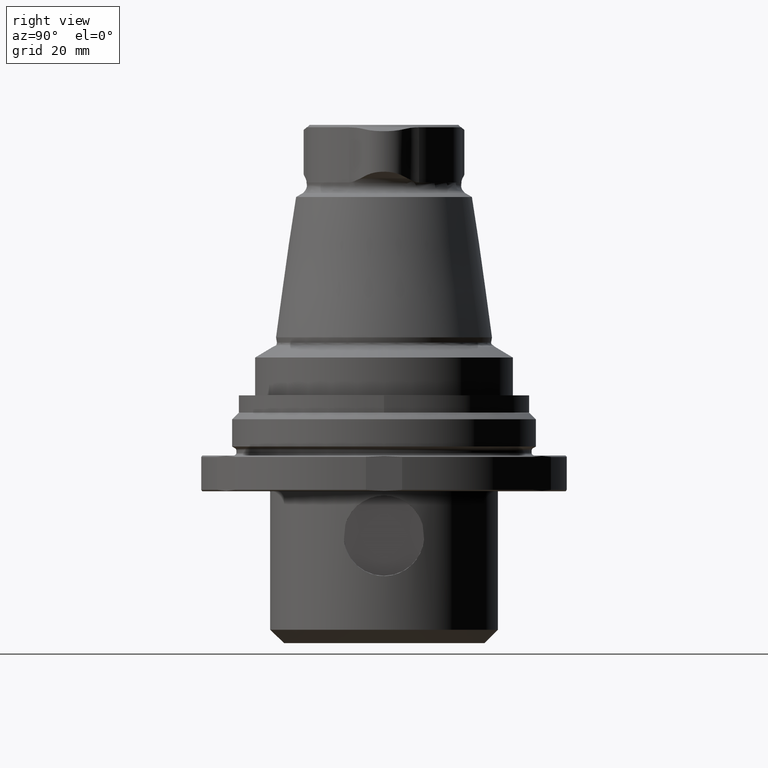
[diagram: clean part render]
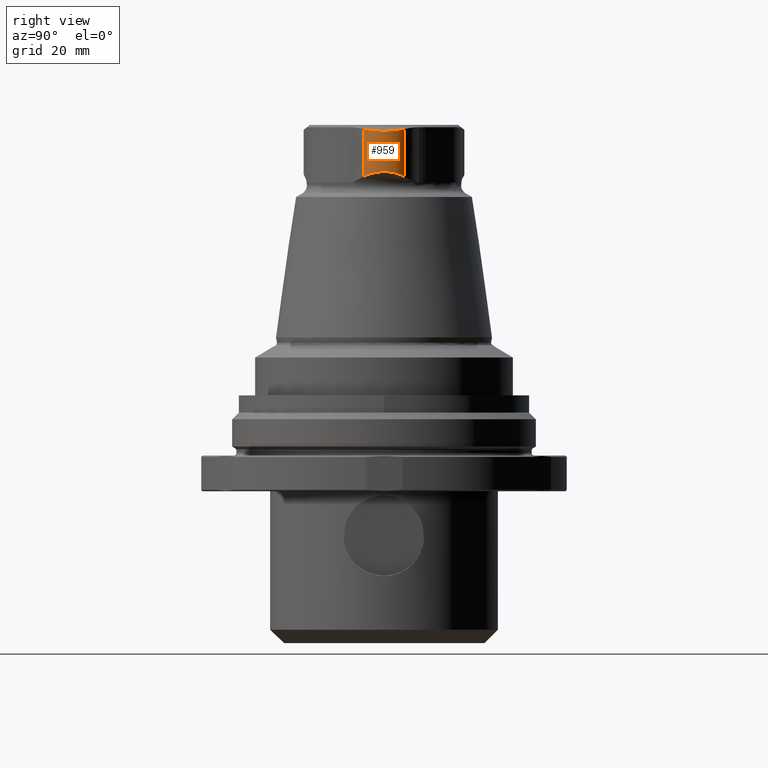
[diagram: same view with one face highlighted and labeled with its STEP entity id]
A machine part, right view. The second image highlights one B-rep face of the part: STEP entity #959.
In plain terms, the highlighted cylindrical surface (edge-blend (fillet) strip) has radius 6.35 mm, axis along (0, 0, 1).
Its self-contained STEP definition (entity closure, byte-faithful):
#133=LINE('',#1676,#163);
#134=LINE('',#1687,#164);
#163=VECTOR('',#1288,1000.);
#164=VECTOR('',#1289,1000.);
#310=ORIENTED_EDGE('',*,*,#512,.T.);
#311=ORIENTED_EDGE('',*,*,#513,.F.);
#312=ORIENTED_EDGE('',*,*,#514,.F.);
#313=ORIENTED_EDGE('',*,*,#515,.F.);
#512=EDGE_CURVE('',#627,#628,#133,.T.);
#513=EDGE_CURVE('',#629,#628,#684,.T.);
#514=EDGE_CURVE('',#630,#629,#134,.T.);
#515=EDGE_CURVE('',#627,#630,#685,.T.);
#627=VERTEX_POINT('',#1677);
#628=VERTEX_POINT('',#1678);
#629=VERTEX_POINT('',#1686);
#630=VERTEX_POINT('',#1688);
#684=B_SPLINE_CURVE_WITH_KNOTS('',3,(#1679,#1680,#1681,#1682,#1683,#1684,
#1685),.UNSPECIFIED.,.F.,.F.,(4,1,1,1,4),(2.84118447355397E-7,0.00249934494895464,
0.00499840577946193,0.00749746660996922,0.00999652744047651),
 .UNSPECIFIED.);
#685=B_SPLINE_CURVE_WITH_KNOTS('',3,(#1689,#1690,#1691,#1692,#1693,#1694,
#1695),.UNSPECIFIED.,.F.,.F.,(4,1,1,1,4),(3.04578262084422E-7,0.00256285858797735,
0.00512541259769261,0.00768796660740787,0.0102505206171231),
 .UNSPECIFIED.);
#756=EDGE_LOOP('',(#310,#311,#312,#313));
#851=FACE_BOUND('',#756,.T.);
#909=CYLINDRICAL_SURFACE('',#1073,6.35);
#959=ADVANCED_FACE('',(#851),#909,.T.);
#1073=AXIS2_PLACEMENT_3D('',#1675,#1286,#1287);
#1286=DIRECTION('',(0.,0.,1.));
#1287=DIRECTION('',(1.,-6.12303176911189E-17,0.));
#1288=DIRECTION('',(0.,0.,1.));
#1289=DIRECTION('',(0.,0.,1.));
#1675=CARTESIAN_POINT('',(13.45,-8.23547772984548E-16,-46.0210065492642));
#1676=CARTESIAN_POINT('',(17.9347568081611,4.49549289529549,-46.0210065492642));
#1677=CARTESIAN_POINT('',(17.9347568081611,4.49549289529549,61.4315662257756));
#1678=CARTESIAN_POINT('',(17.9347568081611,4.49549289529549,72.0597450497322));
#1679=CARTESIAN_POINT('',(17.9347568081611,-4.49549289529549,72.0597450497322));
#1680=CARTESIAN_POINT('',(18.5225614419484,-3.90909205012795,71.9041148537236));
#1681=CARTESIAN_POINT('',(19.4610857320775,-2.51303377295624,71.6659090895393));
#1682=CARTESIAN_POINT('',(19.9685709394265,-0.00183002506946202,71.5414607556683));
#1683=CARTESIAN_POINT('',(19.4646276304976,2.50554054900793,71.6650186576712));
#1684=CARTESIAN_POINT('',(18.5226164935731,3.9090371299769,71.9041002779706));
#1685=CARTESIAN_POINT('',(17.9347568081611,4.49549289529549,72.0597450497322));
#1686=CARTESIAN_POINT('',(17.9347568081611,-4.4954928952955,72.0597450497322));
#1687=CARTESIAN_POINT('',(17.9347568081611,-4.4954928952955,-46.0210065492642));
#1688=CARTESIAN_POINT('',(17.9347568081611,-4.4954928952955,61.4315662257756));
#1689=CARTESIAN_POINT('',(17.9347568081611,4.49549289529549,61.4315662257756));
#1690=CARTESIAN_POINT('',(18.4970090568549,3.93458341129388,61.7747602538548));
#1691=CARTESIAN_POINT('',(19.4388730983976,2.57204054174551,62.3270238816747));
#1692=CARTESIAN_POINT('',(19.9795754100358,0.00658735192789072,62.6326113282816));
#1693=CARTESIAN_POINT('',(19.442811798377,-2.5663604837447,62.3293050802985));
#1694=CARTESIAN_POINT('',(18.4973020928328,-3.93429107514128,61.774939120543));
#1695=CARTESIAN_POINT('',(17.9347568081611,-4.49549289529549,61.4315662257756));